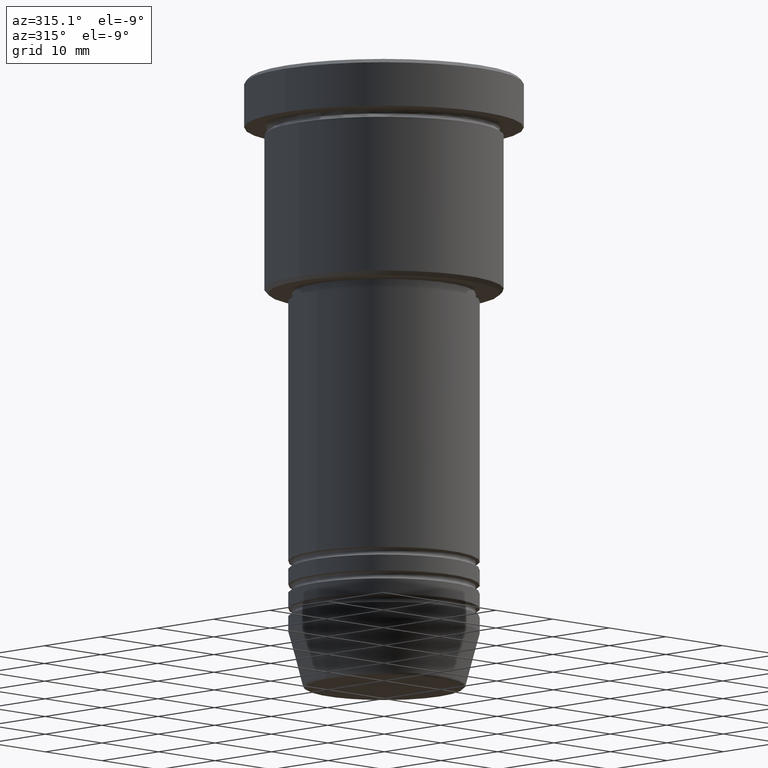
[diagram: clean part render]
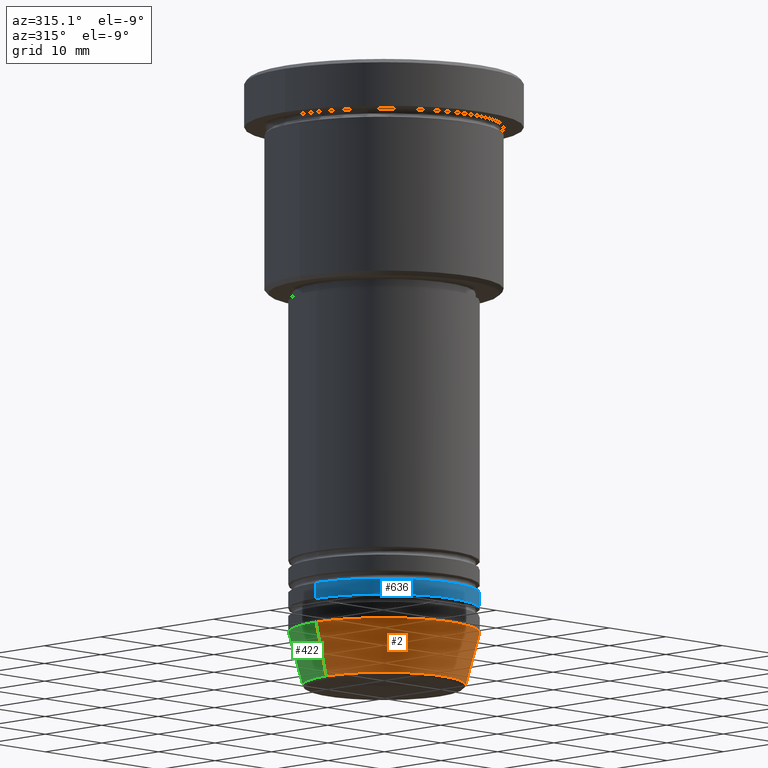
[diagram: same view with three faces highlighted in distinct colors, each labeled with its STEP entity id]
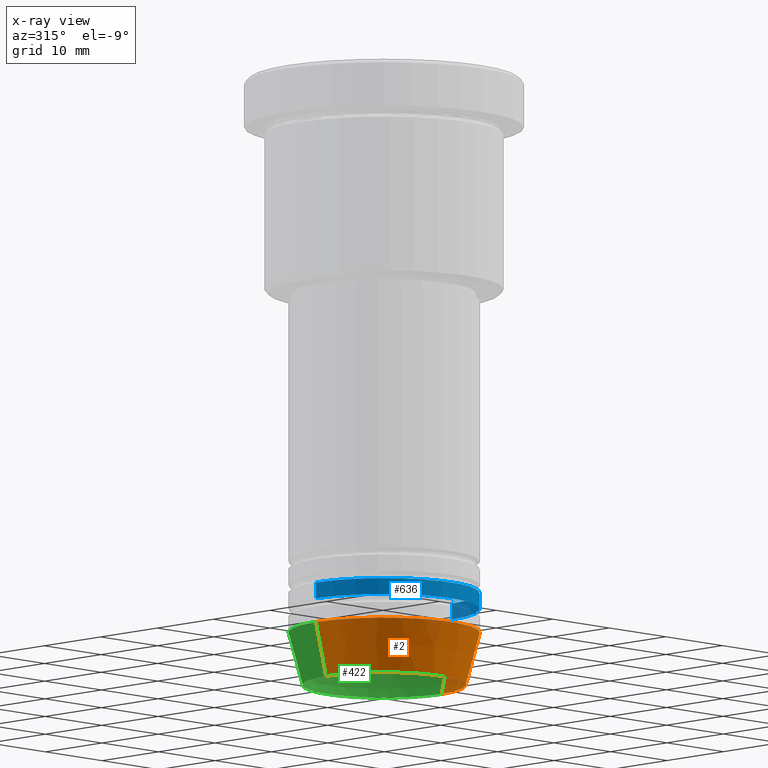
[diagram: x-ray of the same camera — body ghosted, the three highlighted faces saturated]
A machine part, auxiliary view with three faces highlighted in distinct colors.
The next image is the same camera in x-ray (body ghosted, the three faces saturated) — at least one of them is partly hidden behind the body in this view.
Their STEP definitions:

[orange] entity #2 — the highlighted conical surface has half-angle 15 deg.
#2 = ADVANCED_FACE ( 'NONE', ( #537 ), #494, .T. ) ;
#61 = DIRECTION ( 'NONE',  ( 1.000000000000000000, 0.000000000000000000, 0.000000000000000000 ) ) ;
#102 = LINE ( 'NONE', #625, #517 ) ;
#127 = VERTEX_POINT ( 'NONE', #909 ) ;
#156 = EDGE_CURVE ( 'NONE', #757, #185, #827, .T. ) ;
#167 = VERTEX_POINT ( 'NONE', #506 ) ;
#178 = DIRECTION ( 'NONE',  ( 1.000000000000000000, 0.000000000000000000, 0.000000000000000000 ) ) ;
#185 = VERTEX_POINT ( 'NONE', #224 ) ;
#217 = CIRCLE ( 'NONE', #872, 12.00000000000000000 ) ;
#224 = CARTESIAN_POINT ( 'NONE',  ( -12.00000000000000000, 1.469576158976823947E-15, -70.00000000000000000 ) ) ;
#225 = ORIENTED_EDGE ( 'NONE', *, *, #800, .T. ) ;
#260 = EDGE_CURVE ( 'NONE', #757, #167, #433, .T. ) ;
#273 = DIRECTION ( 'NONE',  ( -0.000000000000000000, -0.000000000000000000, 1.000000000000000000 ) ) ;
#282 = CARTESIAN_POINT ( 'NONE',  ( 0.000000000000000000, 0.000000000000000000, -70.00000000000000000 ) ) ;
#291 = EDGE_LOOP ( 'NONE', ( #989, #524, #225, #323 ) ) ;
#314 = CARTESIAN_POINT ( 'NONE',  ( 0.000000000000000000, 0.000000000000000000, -76.62940952255127058 ) ) ;
#323 = ORIENTED_EDGE ( 'NONE', *, *, #372, .F. ) ;
#372 = EDGE_CURVE ( 'NONE', #185, #127, #217, .T. ) ;
#380 = DIRECTION ( 'NONE',  ( -0.2588190451025213501, 3.169619151431772337E-17, 0.9659258262890680902 ) ) ;
#433 = CIRCLE ( 'NONE', #534, 10.22365507213718949 ) ;
#494 = CONICAL_SURFACE ( 'NONE', #791, 12.00000000000000000, 0.2617993877991500740 ) ;
#506 = CARTESIAN_POINT ( 'NONE',  ( 10.22365507213718949, 0.000000000000000000, -76.62940952255127058 ) ) ;
#517 = VECTOR ( 'NONE', #1170, 1000.000000000000000 ) ;
#524 = ORIENTED_EDGE ( 'NONE', *, *, #260, .T. ) ;
#534 = AXIS2_PLACEMENT_3D ( 'NONE', #314, #773, #689 ) ;
#537 = FACE_OUTER_BOUND ( 'NONE', #291, .T. ) ;
#625 = CARTESIAN_POINT ( 'NONE',  ( 12.00000000000000000, 0.000000000000000000, -70.00000000000000000 ) ) ;
#679 = CARTESIAN_POINT ( 'NONE',  ( -10.22365507213718949, 1.360806402472382547E-15, -76.62940952255127058 ) ) ;
#689 = DIRECTION ( 'NONE',  ( 1.000000000000000000, 0.000000000000000000, 0.000000000000000000 ) ) ;
#750 = CARTESIAN_POINT ( 'NONE',  ( -12.00000000000000000, 1.469576158976823947E-15, -70.00000000000000000 ) ) ;
#757 = VERTEX_POINT ( 'NONE', #679 ) ;
#773 = DIRECTION ( 'NONE',  ( -0.000000000000000000, -0.000000000000000000, 1.000000000000000000 ) ) ;
#791 = AXIS2_PLACEMENT_3D ( 'NONE', #1173, #273, #61 ) ;
#800 = EDGE_CURVE ( 'NONE', #167, #127, #102, .T. ) ;
#827 = LINE ( 'NONE', #750, #1055 ) ;
#872 = AXIS2_PLACEMENT_3D ( 'NONE', #282, #1092, #178 ) ;
#909 = CARTESIAN_POINT ( 'NONE',  ( 12.00000000000000000, 0.000000000000000000, -70.00000000000000000 ) ) ;
#989 = ORIENTED_EDGE ( 'NONE', *, *, #156, .F. ) ;
#1055 = VECTOR ( 'NONE', #380, 1000.000000000000000 ) ;
#1092 = DIRECTION ( 'NONE',  ( -0.000000000000000000, -0.000000000000000000, 1.000000000000000000 ) ) ;
#1170 = DIRECTION ( 'NONE',  ( 0.2588190451025213501, 0.000000000000000000, 0.9659258262890680902 ) ) ;
#1173 = CARTESIAN_POINT ( 'NONE',  ( 0.000000000000000000, 0.000000000000000000, -70.00000000000000000 ) ) ;

[blue] entity #636 — the highlighted cylindrical surface (partial cylindrical patch) has radius 12 mm, axis along (-0, -0, 1).
#62 = CYLINDRICAL_SURFACE ( 'NONE', #960, 12.00000000000000000 ) ;
#125 = CARTESIAN_POINT ( 'NONE',  ( 0.000000000000000000, 0.000000000000000000, -64.99999999999998579 ) ) ;
#149 = FACE_OUTER_BOUND ( 'NONE', #655, .T. ) ;
#223 = LINE ( 'NONE', #758, #686 ) ;
#235 = CIRCLE ( 'NONE', #382, 12.00000000000000000 ) ;
#258 = DIRECTION ( 'NONE',  ( -0.000000000000000000, -0.000000000000000000, 1.000000000000000000 ) ) ;
#268 = VERTEX_POINT ( 'NONE', #1144 ) ;
#311 = DIRECTION ( 'NONE',  ( -0.000000000000000000, -0.000000000000000000, 1.000000000000000000 ) ) ;
#341 = CARTESIAN_POINT ( 'NONE',  ( 12.00000000000000000, 0.000000000000000000, -66.99999999999998579 ) ) ;
#342 = DIRECTION ( 'NONE',  ( 1.000000000000000000, 0.000000000000000000, 0.000000000000000000 ) ) ;
#382 = AXIS2_PLACEMENT_3D ( 'NONE', #413, #523, #1131 ) ;
#392 = LINE ( 'NONE', #570, #399 ) ;
#399 = VECTOR ( 'NONE', #920, 1000.000000000000000 ) ;
#413 = CARTESIAN_POINT ( 'NONE',  ( 0.000000000000000000, 0.000000000000000000, -66.99999999999998579 ) ) ;
#453 = VERTEX_POINT ( 'NONE', #1104 ) ;
#523 = DIRECTION ( 'NONE',  ( -0.000000000000000000, -0.000000000000000000, 1.000000000000000000 ) ) ;
#533 = EDGE_CURVE ( 'NONE', #1108, #1176, #223, .T. ) ;
#570 = CARTESIAN_POINT ( 'NONE',  ( -12.00000000000000000, 1.469576158976823947E-15, 0.000000000000000000 ) ) ;
#585 = ORIENTED_EDGE ( 'NONE', *, *, #955, .F. ) ;
#636 = ADVANCED_FACE ( 'NONE', ( #149 ), #62, .T. ) ;
#652 = DIRECTION ( 'NONE',  ( 1.000000000000000000, 0.000000000000000000, 0.000000000000000000 ) ) ;
#653 = EDGE_CURVE ( 'NONE', #268, #1108, #235, .T. ) ;
#655 = EDGE_LOOP ( 'NONE', ( #585, #774, #974, #886 ) ) ;
#661 = DIRECTION ( 'NONE',  ( -0.000000000000000000, -0.000000000000000000, 1.000000000000000000 ) ) ;
#668 = CIRCLE ( 'NONE', #1096, 12.00000000000000000 ) ;
#686 = VECTOR ( 'NONE', #311, 1000.000000000000000 ) ;
#758 = CARTESIAN_POINT ( 'NONE',  ( 12.00000000000000000, 0.000000000000000000, 0.000000000000000000 ) ) ;
#774 = ORIENTED_EDGE ( 'NONE', *, *, #653, .T. ) ;
#886 = ORIENTED_EDGE ( 'NONE', *, *, #914, .F. ) ;
#914 = EDGE_CURVE ( 'NONE', #453, #1176, #668, .T. ) ;
#920 = DIRECTION ( 'NONE',  ( -0.000000000000000000, -0.000000000000000000, 1.000000000000000000 ) ) ;
#955 = EDGE_CURVE ( 'NONE', #268, #453, #392, .T. ) ;
#960 = AXIS2_PLACEMENT_3D ( 'NONE', #1147, #258, #342 ) ;
#974 = ORIENTED_EDGE ( 'NONE', *, *, #533, .T. ) ;
#1059 = CARTESIAN_POINT ( 'NONE',  ( 12.00000000000000000, 0.000000000000000000, -64.99999999999998579 ) ) ;
#1096 = AXIS2_PLACEMENT_3D ( 'NONE', #125, #661, #652 ) ;
#1104 = CARTESIAN_POINT ( 'NONE',  ( -12.00000000000000000, 1.469576158976823947E-15, -64.99999999999998579 ) ) ;
#1108 = VERTEX_POINT ( 'NONE', #341 ) ;
#1131 = DIRECTION ( 'NONE',  ( 1.000000000000000000, 0.000000000000000000, 0.000000000000000000 ) ) ;
#1144 = CARTESIAN_POINT ( 'NONE',  ( -12.00000000000000000, 1.469576158976823947E-15, -66.99999999999998579 ) ) ;
#1147 = CARTESIAN_POINT ( 'NONE',  ( 0.000000000000000000, 0.000000000000000000, 0.000000000000000000 ) ) ;
#1176 = VERTEX_POINT ( 'NONE', #1059 ) ;

[green] entity #422 — the highlighted conical surface has half-angle 15 deg.
#88 = CARTESIAN_POINT ( 'NONE',  ( 0.000000000000000000, 0.000000000000000000, -76.62940952255127058 ) ) ;
#102 = LINE ( 'NONE', #625, #517 ) ;
#127 = VERTEX_POINT ( 'NONE', #909 ) ;
#156 = EDGE_CURVE ( 'NONE', #757, #185, #827, .T. ) ;
#167 = VERTEX_POINT ( 'NONE', #506 ) ;
#176 = EDGE_CURVE ( 'NONE', #127, #185, #1001, .T. ) ;
#185 = VERTEX_POINT ( 'NONE', #224 ) ;
#224 = CARTESIAN_POINT ( 'NONE',  ( -12.00000000000000000, 1.469576158976823947E-15, -70.00000000000000000 ) ) ;
#233 = AXIS2_PLACEMENT_3D ( 'NONE', #511, #682, #1127 ) ;
#330 = ORIENTED_EDGE ( 'NONE', *, *, #334, .T. ) ;
#334 = EDGE_CURVE ( 'NONE', #167, #757, #627, .T. ) ;
#380 = DIRECTION ( 'NONE',  ( -0.2588190451025213501, 3.169619151431772337E-17, 0.9659258262890680902 ) ) ;
#411 = ORIENTED_EDGE ( 'NONE', *, *, #156, .T. ) ;
#422 = ADVANCED_FACE ( 'NONE', ( #823 ), #479, .T. ) ;
#466 = DIRECTION ( 'NONE',  ( -0.000000000000000000, -0.000000000000000000, 1.000000000000000000 ) ) ;
#479 = CONICAL_SURFACE ( 'NONE', #1115, 12.00000000000000000, 0.2617993877991500740 ) ;
#506 = CARTESIAN_POINT ( 'NONE',  ( 10.22365507213718949, 0.000000000000000000, -76.62940952255127058 ) ) ;
#511 = CARTESIAN_POINT ( 'NONE',  ( 0.000000000000000000, 0.000000000000000000, -70.00000000000000000 ) ) ;
#517 = VECTOR ( 'NONE', #1170, 1000.000000000000000 ) ;
#519 = DIRECTION ( 'NONE',  ( -0.000000000000000000, -0.000000000000000000, 1.000000000000000000 ) ) ;
#625 = CARTESIAN_POINT ( 'NONE',  ( 12.00000000000000000, 0.000000000000000000, -70.00000000000000000 ) ) ;
#627 = CIRCLE ( 'NONE', #873, 10.22365507213718949 ) ;
#628 = DIRECTION ( 'NONE',  ( 1.000000000000000000, 0.000000000000000000, 0.000000000000000000 ) ) ;
#677 = ORIENTED_EDGE ( 'NONE', *, *, #800, .F. ) ;
#679 = CARTESIAN_POINT ( 'NONE',  ( -10.22365507213718949, 1.360806402472382547E-15, -76.62940952255127058 ) ) ;
#682 = DIRECTION ( 'NONE',  ( -0.000000000000000000, -0.000000000000000000, 1.000000000000000000 ) ) ;
#750 = CARTESIAN_POINT ( 'NONE',  ( -12.00000000000000000, 1.469576158976823947E-15, -70.00000000000000000 ) ) ;
#757 = VERTEX_POINT ( 'NONE', #679 ) ;
#800 = EDGE_CURVE ( 'NONE', #167, #127, #102, .T. ) ;
#823 = FACE_OUTER_BOUND ( 'NONE', #1081, .T. ) ;
#827 = LINE ( 'NONE', #750, #1055 ) ;
#873 = AXIS2_PLACEMENT_3D ( 'NONE', #88, #466, #628 ) ;
#909 = CARTESIAN_POINT ( 'NONE',  ( 12.00000000000000000, 0.000000000000000000, -70.00000000000000000 ) ) ;
#985 = DIRECTION ( 'NONE',  ( 1.000000000000000000, 0.000000000000000000, 0.000000000000000000 ) ) ;
#1001 = CIRCLE ( 'NONE', #233, 12.00000000000000000 ) ;
#1004 = CARTESIAN_POINT ( 'NONE',  ( 0.000000000000000000, 0.000000000000000000, -70.00000000000000000 ) ) ;
#1055 = VECTOR ( 'NONE', #380, 1000.000000000000000 ) ;
#1081 = EDGE_LOOP ( 'NONE', ( #330, #411, #1091, #677 ) ) ;
#1091 = ORIENTED_EDGE ( 'NONE', *, *, #176, .F. ) ;
#1115 = AXIS2_PLACEMENT_3D ( 'NONE', #1004, #519, #985 ) ;
#1127 = DIRECTION ( 'NONE',  ( 1.000000000000000000, 0.000000000000000000, 0.000000000000000000 ) ) ;
#1170 = DIRECTION ( 'NONE',  ( 0.2588190451025213501, 0.000000000000000000, 0.9659258262890680902 ) ) ;